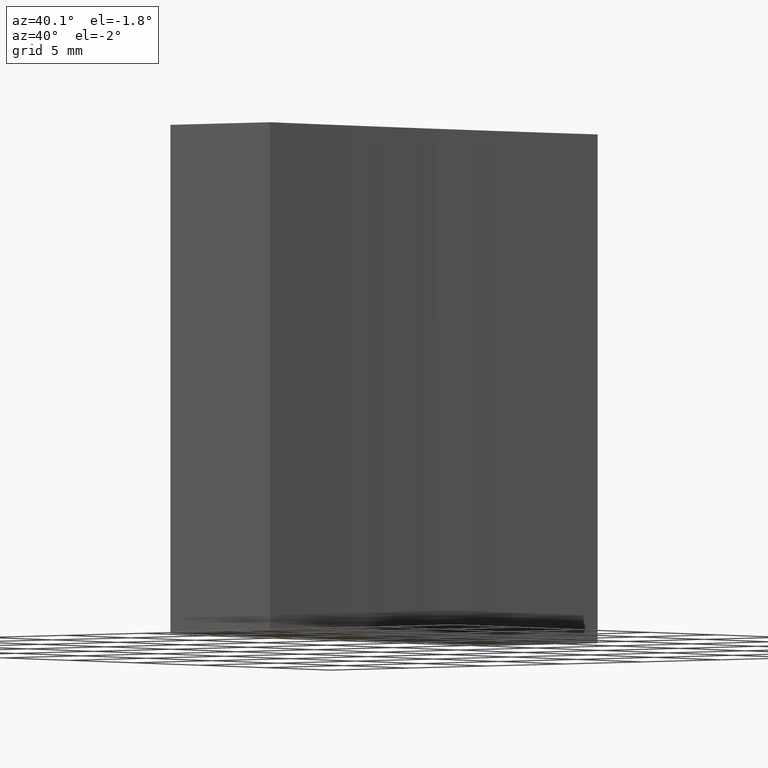
[diagram: clean part render]
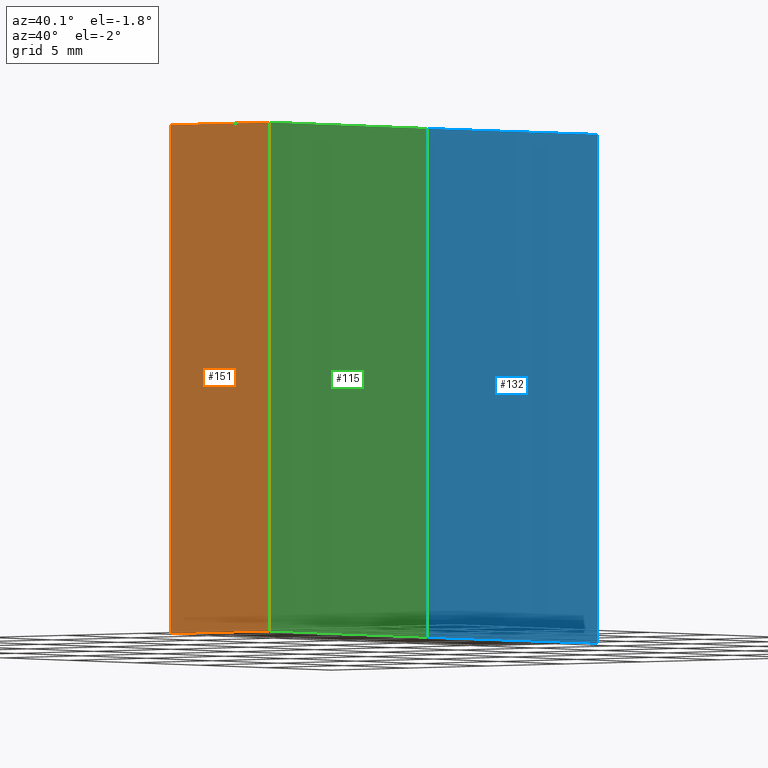
[diagram: same view with three faces highlighted in distinct colors, each labeled with its STEP entity id]
A machine part, auxiliary view with three faces highlighted in distinct colors.
Their STEP definitions:

[orange] entity #151 — the highlighted planar face has unit normal (-0, 1, 0).
#10 = PLANE ( 'NONE',  #226 ) ;
#16 = FACE_OUTER_BOUND ( 'NONE', #211, .T. ) ;
#20 = LINE ( 'NONE', #48, #32 ) ;
#23 = DIRECTION ( 'NONE',  ( 1.000000000000000000, 9.771549775893063200E-015, -0.0000000000000000000 ) ) ;
#25 = CARTESIAN_POINT ( 'NONE',  ( 291.0981428478888800, 54.35792926776720400, 25.00000000000000000 ) ) ;
#32 = VECTOR ( 'NONE', #114, 1000.000000000000000 ) ;
#40 = VERTEX_POINT ( 'NONE', #139 ) ;
#42 = CARTESIAN_POINT ( 'NONE',  ( 284.7071356312820900, 54.35792926776707600, 0.0000000000000000000 ) ) ;
#46 = VECTOR ( 'NONE', #50, 1000.000000000000000 ) ;
#48 = CARTESIAN_POINT ( 'NONE',  ( 291.0981428478888800, 54.35792926776714000, 25.00000000000000000 ) ) ;
#50 = DIRECTION ( 'NONE',  ( -0.0000000000000000000, -0.0000000000000000000, -1.000000000000000000 ) ) ;
#64 = CARTESIAN_POINT ( 'NONE',  ( 284.7071356312820900, 54.35792926776707600, 25.00000000000000000 ) ) ;
#65 = DIRECTION ( 'NONE',  ( -0.0000000000000000000, -0.0000000000000000000, -1.000000000000000000 ) ) ;
#109 = VECTOR ( 'NONE', #23, 1000.000000000000000 ) ;
#111 = CARTESIAN_POINT ( 'NONE',  ( 291.0981428478888800, 54.35792926776720400, 0.0000000000000000000 ) ) ;
#114 = DIRECTION ( 'NONE',  ( 1.000000000000000000, 9.771549775893063200E-015, -0.0000000000000000000 ) ) ;
#119 = ORIENTED_EDGE ( 'NONE', *, *, #173, .T. ) ;
#124 = LINE ( 'NONE', #25, #46 ) ;
#130 = VERTEX_POINT ( 'NONE', #42 ) ;
#139 = CARTESIAN_POINT ( 'NONE',  ( 291.0981428478888800, 54.35792926776720400, 25.00000000000000000 ) ) ;
#143 = LINE ( 'NONE', #164, #109 ) ;
#147 = CARTESIAN_POINT ( 'NONE',  ( 284.7071356312820900, 54.35792926776707600, 25.00000000000000000 ) ) ;
#148 = CARTESIAN_POINT ( 'NONE',  ( 291.0981428478888800, 54.35792926776714000, 25.00000000000000000 ) ) ;
#151 = ADVANCED_FACE ( 'NONE', ( #16 ), #10, .F. ) ;
#164 = CARTESIAN_POINT ( 'NONE',  ( 291.0981428478888800, 54.35792926776714000, 0.0000000000000000000 ) ) ;
#168 = DIRECTION ( 'NONE',  ( -9.771549775893063200E-015, 1.000000000000000000, 0.0000000000000000000 ) ) ;
#172 = LINE ( 'NONE', #64, #236 ) ;
#173 = EDGE_CURVE ( 'NONE', #130, #210, #143, .T. ) ;
#179 = ORIENTED_EDGE ( 'NONE', *, *, #203, .F. ) ;
#183 = ORIENTED_EDGE ( 'NONE', *, *, #238, .T. ) ;
#184 = EDGE_CURVE ( 'NONE', #40, #210, #124, .T. ) ;
#194 = VERTEX_POINT ( 'NONE', #147 ) ;
#203 = EDGE_CURVE ( 'NONE', #194, #40, #20, .T. ) ;
#205 = ORIENTED_EDGE ( 'NONE', *, *, #184, .F. ) ;
#210 = VERTEX_POINT ( 'NONE', #111 ) ;
#211 = EDGE_LOOP ( 'NONE', ( #119, #205, #179, #183 ) ) ;
#226 = AXIS2_PLACEMENT_3D ( 'NONE', #148, #168, #231 ) ;
#231 = DIRECTION ( 'NONE',  ( -1.000000000000000000, -9.771549775893063200E-015, 0.0000000000000000000 ) ) ;
#236 = VECTOR ( 'NONE', #65, 1000.000000000000000 ) ;
#238 = EDGE_CURVE ( 'NONE', #194, #130, #172, .T. ) ;

[blue] entity #132 — the highlighted cylindrical surface (partial cylindrical patch) has radius 200 mm, axis along (-0, -0, -1).
#2 = FACE_OUTER_BOUND ( 'NONE', #105, .T. ) ;
#3 = CARTESIAN_POINT ( 'NONE',  ( 291.0981428478888800, 79.35792926776707600, 0.0000000000000000000 ) ) ;
#7 = DIRECTION ( 'NONE',  ( -0.0000000000000000000, -0.0000000000000000000, -1.000000000000000000 ) ) ;
#8 = VERTEX_POINT ( 'NONE', #39 ) ;
#22 = DIRECTION ( 'NONE',  ( -1.000000000000000000, 0.0000000000000000000, 0.0000000000000000000 ) ) ;
#26 = CIRCLE ( 'NONE', #189, 200.0000000000000000 ) ;
#27 = CYLINDRICAL_SURFACE ( 'NONE', #58, 200.0000000000000000 ) ;
#29 = CARTESIAN_POINT ( 'NONE',  ( 490.7071356312802700, 66.85792926776710500, 0.0000000000000000000 ) ) ;
#39 = CARTESIAN_POINT ( 'NONE',  ( 290.7071356312802700, 66.85792926776710500, 0.0000000000000000000 ) ) ;
#41 = EDGE_CURVE ( 'NONE', #53, #54, #57, .T. ) ;
#44 = DIRECTION ( 'NONE',  ( -0.0000000000000000000, -0.0000000000000000000, -1.000000000000000000 ) ) ;
#51 = VERTEX_POINT ( 'NONE', #3 ) ;
#53 = VERTEX_POINT ( 'NONE', #63 ) ;
#54 = VERTEX_POINT ( 'NONE', #202 ) ;
#57 = CIRCLE ( 'NONE', #99, 200.0000000000000000 ) ;
#58 = AXIS2_PLACEMENT_3D ( 'NONE', #239, #44, #22 ) ;
#63 = CARTESIAN_POINT ( 'NONE',  ( 290.7071356312802700, 66.85792926776710500, 25.00000000000000000 ) ) ;
#75 = ORIENTED_EDGE ( 'NONE', *, *, #161, .T. ) ;
#81 = DIRECTION ( 'NONE',  ( -0.0000000000000000000, -0.0000000000000000000, -1.000000000000000000 ) ) ;
#96 = DIRECTION ( 'NONE',  ( 1.000000000000000000, 0.0000000000000000000, 0.0000000000000000000 ) ) ;
#99 = AXIS2_PLACEMENT_3D ( 'NONE', #144, #125, #222 ) ;
#101 = DIRECTION ( 'NONE',  ( -0.0000000000000000000, -0.0000000000000000000, -1.000000000000000000 ) ) ;
#102 = VECTOR ( 'NONE', #7, 1000.000000000000000 ) ;
#105 = EDGE_LOOP ( 'NONE', ( #221, #75, #191, #233 ) ) ;
#113 = CARTESIAN_POINT ( 'NONE',  ( 291.0981428478888800, 79.35792926776707600, 25.00000000000000000 ) ) ;
#125 = DIRECTION ( 'NONE',  ( -0.0000000000000000000, -0.0000000000000000000, -1.000000000000000000 ) ) ;
#132 = ADVANCED_FACE ( 'NONE', ( #2 ), #27, .F. ) ;
#144 = CARTESIAN_POINT ( 'NONE',  ( 490.7071356312802700, 66.85792926776710500, 25.00000000000000000 ) ) ;
#161 = EDGE_CURVE ( 'NONE', #53, #8, #162, .T. ) ;
#162 = LINE ( 'NONE', #228, #102 ) ;
#166 = VECTOR ( 'NONE', #101, 1000.000000000000000 ) ;
#182 = LINE ( 'NONE', #113, #166 ) ;
#189 = AXIS2_PLACEMENT_3D ( 'NONE', #29, #81, #96 ) ;
#191 = ORIENTED_EDGE ( 'NONE', *, *, #234, .T. ) ;
#192 = EDGE_CURVE ( 'NONE', #54, #51, #182, .T. ) ;
#202 = CARTESIAN_POINT ( 'NONE',  ( 291.0981428478888800, 79.35792926776707600, 25.00000000000000000 ) ) ;
#221 = ORIENTED_EDGE ( 'NONE', *, *, #41, .F. ) ;
#222 = DIRECTION ( 'NONE',  ( 1.000000000000000000, 0.0000000000000000000, 0.0000000000000000000 ) ) ;
#228 = CARTESIAN_POINT ( 'NONE',  ( 290.7071356312802700, 66.85792926776710500, 25.00000000000000000 ) ) ;
#233 = ORIENTED_EDGE ( 'NONE', *, *, #192, .F. ) ;
#234 = EDGE_CURVE ( 'NONE', #8, #51, #26, .T. ) ;
#239 = CARTESIAN_POINT ( 'NONE',  ( 490.7071356312802700, 66.85792926776710500, 25.00000000000000000 ) ) ;

[green] entity #115 — the highlighted cylindrical surface (partial cylindrical patch) has radius 200 mm, axis along (-0, -0, -1).
#7 = DIRECTION ( 'NONE',  ( -0.0000000000000000000, -0.0000000000000000000, -1.000000000000000000 ) ) ;
#8 = VERTEX_POINT ( 'NONE', #39 ) ;
#15 = AXIS2_PLACEMENT_3D ( 'NONE', #197, #218, #196 ) ;
#25 = CARTESIAN_POINT ( 'NONE',  ( 291.0981428478888800, 54.35792926776720400, 25.00000000000000000 ) ) ;
#34 = EDGE_CURVE ( 'NONE', #40, #53, #187, .T. ) ;
#35 = ORIENTED_EDGE ( 'NONE', *, *, #70, .T. ) ;
#39 = CARTESIAN_POINT ( 'NONE',  ( 290.7071356312802700, 66.85792926776710500, 0.0000000000000000000 ) ) ;
#40 = VERTEX_POINT ( 'NONE', #139 ) ;
#46 = VECTOR ( 'NONE', #50, 1000.000000000000000 ) ;
#50 = DIRECTION ( 'NONE',  ( -0.0000000000000000000, -0.0000000000000000000, -1.000000000000000000 ) ) ;
#53 = VERTEX_POINT ( 'NONE', #63 ) ;
#63 = CARTESIAN_POINT ( 'NONE',  ( 290.7071356312802700, 66.85792926776710500, 25.00000000000000000 ) ) ;
#70 = EDGE_CURVE ( 'NONE', #210, #8, #224, .T. ) ;
#78 = CARTESIAN_POINT ( 'NONE',  ( 490.7071356312802700, 66.85792926776710500, 0.0000000000000000000 ) ) ;
#93 = DIRECTION ( 'NONE',  ( -0.0000000000000000000, -0.0000000000000000000, -1.000000000000000000 ) ) ;
#94 = DIRECTION ( 'NONE',  ( -1.000000000000000000, 0.0000000000000000000, 0.0000000000000000000 ) ) ;
#102 = VECTOR ( 'NONE', #7, 1000.000000000000000 ) ;
#111 = CARTESIAN_POINT ( 'NONE',  ( 291.0981428478888800, 54.35792926776720400, 0.0000000000000000000 ) ) ;
#115 = ADVANCED_FACE ( 'NONE', ( #121 ), #216, .F. ) ;
#121 = FACE_OUTER_BOUND ( 'NONE', #235, .T. ) ;
#124 = LINE ( 'NONE', #25, #46 ) ;
#128 = DIRECTION ( 'NONE',  ( 1.000000000000000000, 0.0000000000000000000, 0.0000000000000000000 ) ) ;
#139 = CARTESIAN_POINT ( 'NONE',  ( 291.0981428478888800, 54.35792926776720400, 25.00000000000000000 ) ) ;
#140 = ORIENTED_EDGE ( 'NONE', *, *, #34, .F. ) ;
#146 = ORIENTED_EDGE ( 'NONE', *, *, #161, .F. ) ;
#155 = AXIS2_PLACEMENT_3D ( 'NONE', #78, #93, #128 ) ;
#161 = EDGE_CURVE ( 'NONE', #53, #8, #162, .T. ) ;
#162 = LINE ( 'NONE', #228, #102 ) ;
#181 = CARTESIAN_POINT ( 'NONE',  ( 490.7071356312802700, 66.85792926776710500, 25.00000000000000000 ) ) ;
#184 = EDGE_CURVE ( 'NONE', #40, #210, #124, .T. ) ;
#187 = CIRCLE ( 'NONE', #15, 200.0000000000000000 ) ;
#190 = ORIENTED_EDGE ( 'NONE', *, *, #184, .T. ) ;
#196 = DIRECTION ( 'NONE',  ( 1.000000000000000000, 0.0000000000000000000, 0.0000000000000000000 ) ) ;
#197 = CARTESIAN_POINT ( 'NONE',  ( 490.7071356312802700, 66.85792926776710500, 25.00000000000000000 ) ) ;
#199 = DIRECTION ( 'NONE',  ( -0.0000000000000000000, -0.0000000000000000000, -1.000000000000000000 ) ) ;
#210 = VERTEX_POINT ( 'NONE', #111 ) ;
#214 = AXIS2_PLACEMENT_3D ( 'NONE', #181, #199, #94 ) ;
#216 = CYLINDRICAL_SURFACE ( 'NONE', #214, 200.0000000000000000 ) ;
#218 = DIRECTION ( 'NONE',  ( -0.0000000000000000000, -0.0000000000000000000, -1.000000000000000000 ) ) ;
#224 = CIRCLE ( 'NONE', #155, 200.0000000000000000 ) ;
#228 = CARTESIAN_POINT ( 'NONE',  ( 290.7071356312802700, 66.85792926776710500, 25.00000000000000000 ) ) ;
#235 = EDGE_LOOP ( 'NONE', ( #146, #140, #190, #35 ) ) ;